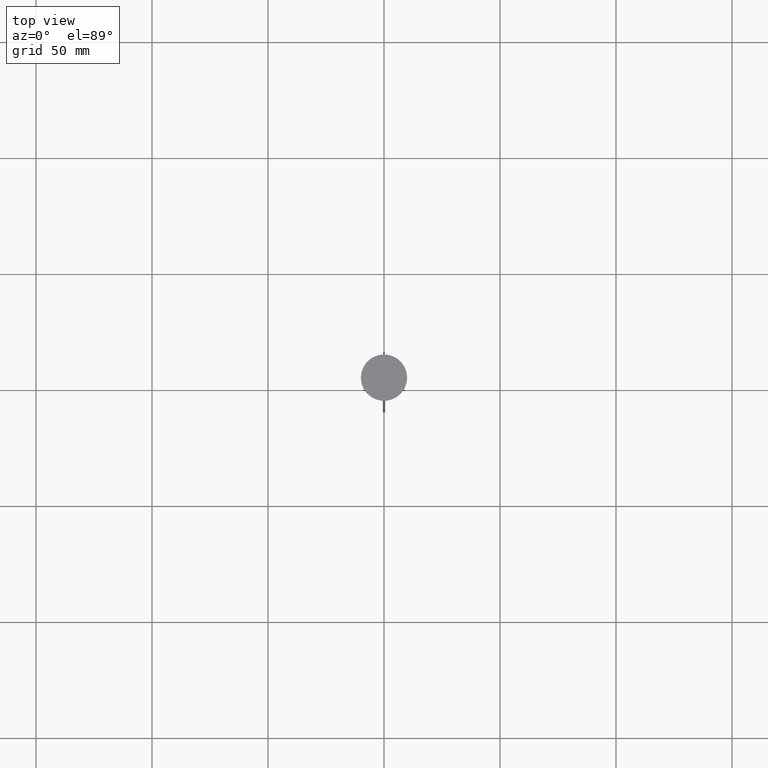
[diagram: clean part render]
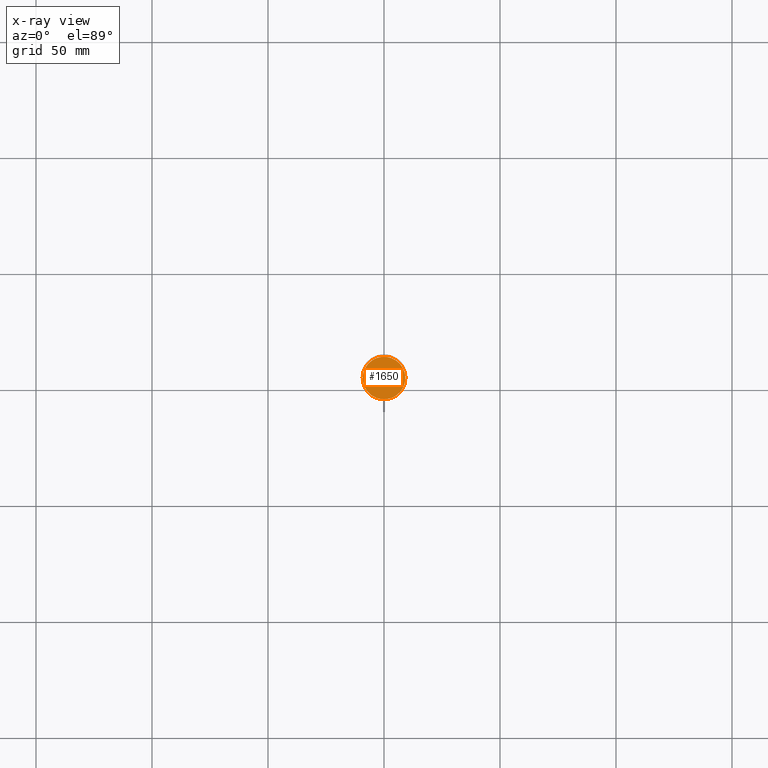
[diagram: x-ray — body ghosted, one internal face saturated and labeled with its STEP entity id]
A machine part, top view, then the same camera in x-ray: the body is ghosted and one INTERNAL B-rep face — a face not visible from any outside direction — is saturated and labeled: STEP entity #1650.
In plain terms, the highlighted planar face has unit normal (0, 0, -1).
Its self-contained STEP definition (entity closure, byte-faithful):
#81 = AXIS2_PLACEMENT_3D ( 'NONE', #824, #601, #1431 ) ;
#114 = CARTESIAN_POINT ( 'NONE',  ( 0.000000000000000000, 0.000000000000000000, -12.00000000000000000 ) ) ;
#131 = VERTEX_POINT ( 'NONE', #961 ) ;
#205 = CIRCLE ( 'NONE', #81, 9.200000000000001066 ) ;
#229 = DIRECTION ( 'NONE',  ( -1.000000000000000000, 0.000000000000000000, 0.000000000000000000 ) ) ;
#296 = DIRECTION ( 'NONE',  ( -1.000000000000000000, 0.000000000000000000, -0.000000000000000000 ) ) ;
#321 = PLANE ( 'NONE',  #1798 ) ;
#566 = ORIENTED_EDGE ( 'NONE', *, *, #1577, .T. ) ;
#601 = DIRECTION ( 'NONE',  ( -0.000000000000000000, -0.000000000000000000, 1.000000000000000000 ) ) ;
#718 = CIRCLE ( 'NONE', #1027, 9.200000000000001066 ) ;
#824 = CARTESIAN_POINT ( 'NONE',  ( 0.000000000000000000, 0.000000000000000000, -12.00000000000000000 ) ) ;
#961 = CARTESIAN_POINT ( 'NONE',  ( 9.200000000000001066, 1.145044757202775450E-15, -12.00000000000000000 ) ) ;
#1027 = AXIS2_PLACEMENT_3D ( 'NONE', #2086, #1096, #229 ) ;
#1096 = DIRECTION ( 'NONE',  ( -0.000000000000000000, -0.000000000000000000, 1.000000000000000000 ) ) ;
#1139 = DIRECTION ( 'NONE',  ( 0.000000000000000000, 0.000000000000000000, -1.000000000000000000 ) ) ;
#1423 = CARTESIAN_POINT ( 'NONE',  ( -9.200000000000001066, 0.000000000000000000, -12.00000000000000000 ) ) ;
#1431 = DIRECTION ( 'NONE',  ( -1.000000000000000000, 0.000000000000000000, 0.000000000000000000 ) ) ;
#1577 = EDGE_CURVE ( 'NONE', #1990, #131, #718, .T. ) ;
#1650 = ADVANCED_FACE ( 'NONE', ( #2603 ), #321, .F. ) ;
#1798 = AXIS2_PLACEMENT_3D ( 'NONE', #114, #1139, #296 ) ;
#1821 = EDGE_CURVE ( 'NONE', #131, #1990, #205, .T. ) ;
#1990 = VERTEX_POINT ( 'NONE', #1423 ) ;
#2086 = CARTESIAN_POINT ( 'NONE',  ( 0.000000000000000000, 0.000000000000000000, -12.00000000000000000 ) ) ;
#2227 = EDGE_LOOP ( 'NONE', ( #566, #2473 ) ) ;
#2473 = ORIENTED_EDGE ( 'NONE', *, *, #1821, .T. ) ;
#2603 = FACE_OUTER_BOUND ( 'NONE', #2227, .T. ) ;